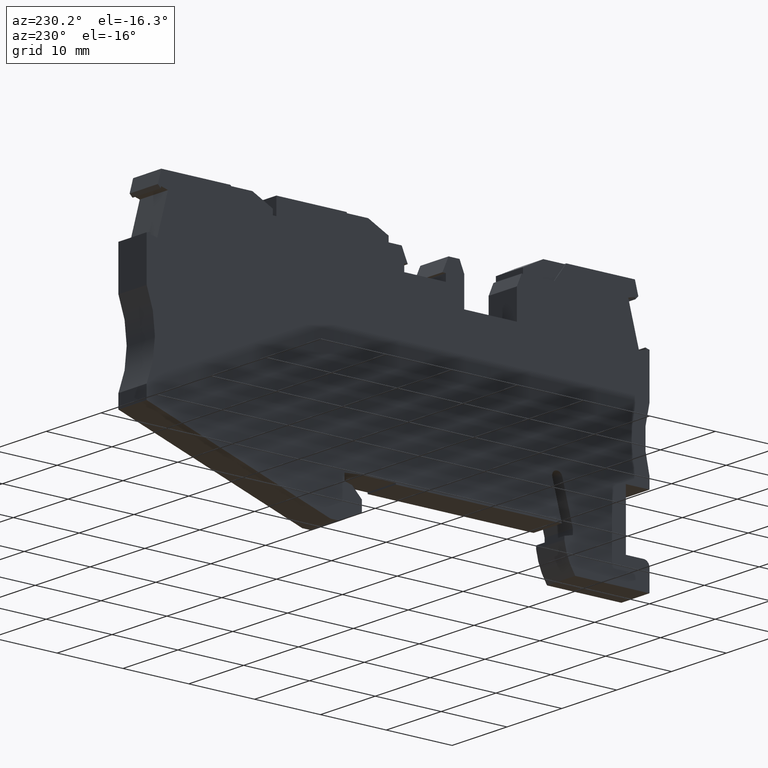
[diagram: clean part render]
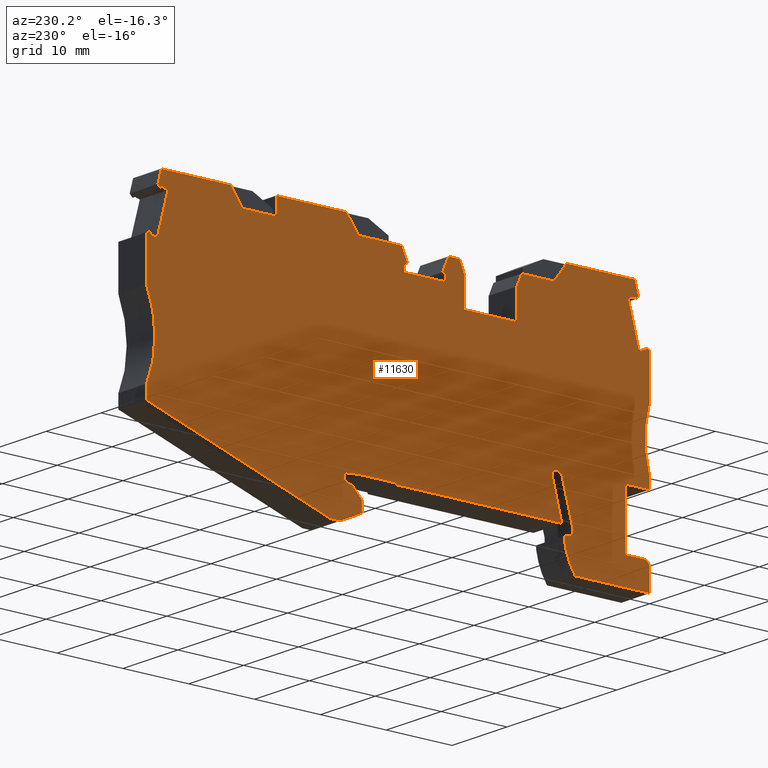
[diagram: same view with one face highlighted and labeled with its STEP entity id]
A machine part, auxiliary view. The second image highlights one B-rep face of the part: STEP entity #11630.
In plain terms, the highlighted planar face has unit normal (-1, 0, 0).
Its self-contained STEP definition (entity closure, byte-faithful):
#5900=CARTESIAN_POINT('',(51.2188489241426,33.0164906422133,
-5.15000000005551));
#5910=DIRECTION('',(4.96842071130554E-14,5.83845220303011E-13,-1.));
#5920=DIRECTION('',(-0.992546151641485,-0.121869343403826,
-1.20466702215212E-13));
#5930=AXIS2_PLACEMENT_3D('',#5900,#5910,#5920);
#5940=PLANE('',#5930);
#5950=CARTESIAN_POINT('',(2.08721928629529E-13,-25.676500943028,
-5.15000000009233));
#5960=DIRECTION('',(0.904601039469269,0.426259263114737,
2.93820523467048E-13));
#5970=VECTOR('',#5960,1.);
#5980=LINE('',#5950,#5970);
#5990=CARTESIAN_POINT('',(55.8575904551393,0.644290552791665,
-5.15000000007418));
#6000=VERTEX_POINT('',#5990);
#6010=CARTESIAN_POINT('',(82.4574372953319,13.1784692883342,
-5.15000000006554));
#6020=VERTEX_POINT('',#6010);
#6030=EDGE_CURVE('',#6000,#6020,#5980,.T.);
#6040=ORIENTED_EDGE('',*,*,#6030,.F.);
#6050=CARTESIAN_POINT('',(84.0755498602719,4.09450251481758E-12,
-5.15000000007316));
#6060=DIRECTION('',(-0.121869343405147,0.992546151641322,
5.73430192218893E-13));
#6070=VECTOR('',#6060,1.);
#6080=LINE('',#6050,#6070);
#6090=CARTESIAN_POINT('',(82.2135822231593,15.1645094743265,
-5.1500000000644));
#6100=VERTEX_POINT('',#6090);
#6110=EDGE_CURVE('',#6020,#6100,#6080,.T.);
#6120=ORIENTED_EDGE('',*,*,#6110,.F.);
#6130=CARTESIAN_POINT('',(95.1276197746289,22.7952128573204,
-5.1500000000593));
#6140=DIRECTION('',(0.,0.,1.));
#6150=DIRECTION('',(0.992546151641322,0.121869343405147,0.));
#6160=AXIS2_PLACEMENT_3D('',#6130,#6140,#6150);
#6170=CIRCLE('',#6160,15.);
#6180=CARTESIAN_POINT('',(80.7511501013423,27.0750632908134,
-5.15000000005752));
#6190=VERTEX_POINT('',#6180);
#6200=EDGE_CURVE('',#6190,#6100,#6170,.T.);
#6210=ORIENTED_EDGE('',*,*,#6200,.T.);
#6220=CARTESIAN_POINT('',(83.8121891997342,2.1449004439346,
-5.15000000007088));
#6230=DIRECTION('',(-0.121869343405148,0.992546151641323,
-8.59348256359817E-17));
#6240=VECTOR('',#6230,1.);
#6250=LINE('',#6220,#6240);
#6260=CARTESIAN_POINT('',(79.9711959708173,33.4272799277381,
-5.15000000005385));
#6270=VERTEX_POINT('',#6260);
#6280=EDGE_CURVE('',#6190,#6270,#6250,.T.);
#6290=ORIENTED_EDGE('',*,*,#6280,.F.);
#6300=CARTESIAN_POINT('',(84.393590998747,32.805752839162,
-5.1500000001038));
#6310=DIRECTION('',(0.990268068742582,-0.139173100952866,
2.38914485789058E-14));
#6320=VECTOR('',#6310,1.);
#6330=LINE('',#6300,#6320);
#6340=CARTESIAN_POINT('',(79.3161911343751,33.519334854181,
-5.15000000005383));
#6350=VERTEX_POINT('',#6340);
#6360=EDGE_CURVE('',#6350,#6270,#6330,.T.);
#6370=ORIENTED_EDGE('',*,*,#6360,.T.);
#6380=CARTESIAN_POINT('',(88.5328933703196,10.7071963181914,
-5.15000000007088));
#6390=DIRECTION('',(0.374606593416609,-0.927183854566507,
1.02199061616735E-16));
#6400=VECTOR('',#6390,1.);
#6410=LINE('',#6380,#6400);
#6420=CARTESIAN_POINT('',(79.4181993646889,33.2668556243914,
-5.15000000005397));
#6430=VERTEX_POINT('',#6420);
#6440=EDGE_CURVE('',#6350,#6430,#6410,.T.);
#6450=ORIENTED_EDGE('',*,*,#6440,.F.);
#6460=CARTESIAN_POINT('',(83.833817627005,35.0508812056451,
-5.15000000007089));
#6470=DIRECTION('',(0.927183854566691,0.374606593416152,
6.21468438094032E-17));
#6480=VECTOR('',#6470,1.);
#6490=LINE('',#6460,#6480);
#6500=CARTESIAN_POINT('',(78.4261126403034,32.8660265694365,
-5.15000000005425));
#6510=VERTEX_POINT('',#6500);
#6520=EDGE_CURVE('',#6510,#6430,#6490,.T.);
#6530=ORIENTED_EDGE('',*,*,#6520,.T.);
#6540=CARTESIAN_POINT('',(87.4844737959653,10.4457959595759,
-5.15000000010379));
#6550=DIRECTION('',(-0.374606593416128,0.927183854566701,
-6.4721036654035E-15));
#6560=VECTOR('',#6550,1.);
#6570=LINE('',#6540,#6560);
#6580=CARTESIAN_POINT('',(76.0567259369463,38.7304644495711,
-5.15000000005094));
#6590=VERTEX_POINT('',#6580);
#6600=EDGE_CURVE('',#6510,#6590,#6570,.T.);
#6610=ORIENTED_EDGE('',*,*,#6600,.F.);
#6620=CARTESIAN_POINT('',(82.2886239183839,41.2483146708005,
-5.15000000007089));
#6630=DIRECTION('',(-0.927183854566821,-0.37460659341583,
-6.21468438096052E-17));
#6640=VECTOR('',#6630,1.);
#6650=LINE('',#6620,#6640);
#6660=CARTESIAN_POINT('',(77.0488126613329,39.1312935045261,
-5.15000000005066));
#6670=VERTEX_POINT('',#6660);
#6680=EDGE_CURVE('',#6670,#6590,#6650,.T.);
#6690=ORIENTED_EDGE('',*,*,#6680,.T.);
#6700=CARTESIAN_POINT('',(88.5328933702838,10.7071963181825,
-5.15000000007088));
#6710=DIRECTION('',(-0.374606593415373,0.927183854567006,
-1.02199061616634E-16));
#6720=VECTOR('',#6710,1.);
#6730=LINE('',#6700,#6720);
#6740=CARTESIAN_POINT('',(77.1508208916473,38.8788142747344,
-5.1500000000508));
#6750=VERTEX_POINT('',#6740);
#6760=EDGE_CURVE('',#6750,#6670,#6730,.T.);
#6770=ORIENTED_EDGE('',*,*,#6760,.T.);
#6780=CARTESIAN_POINT('',(81.4935363772046,44.4372366214538,
-5.15000000010383));
#6790=DIRECTION('',(0.615661475326689,0.788010753605917,
1.74054671256952E-14));
#6800=VECTOR('',#6790,1.);
#6810=LINE('',#6780,#6800);
#6820=CARTESIAN_POINT('',(77.5276003492673,39.361069988696,
-5.1500000000505));
#6830=VERTEX_POINT('',#6820);
#6840=EDGE_CURVE('',#6750,#6830,#6810,.T.);
#6850=ORIENTED_EDGE('',*,*,#6840,.F.);
#6860=CARTESIAN_POINT('',(89.0522040005969,10.8366750004937,
-5.15000000010375));
#6870=DIRECTION('',(-0.374606593416333,0.927183854566618,
-6.45822587759573E-15));
#6880=VECTOR('',#6870,1.);
#6890=LINE('',#6860,#6880);
#6900=CARTESIAN_POINT('',(76.7664159758304,41.2450674244131,
-5.15000000004944));
#6910=VERTEX_POINT('',#6900);
#6920=EDGE_CURVE('',#6830,#6910,#6890,.T.);
#6930=ORIENTED_EDGE('',*,*,#6920,.F.);
#6940=CARTESIAN_POINT('',(82.1253763220989,41.903065017426,
-5.15000000007089));
#6950=DIRECTION('',(0.992546151641315,0.121869343405205,
8.64803049957699E-17));
#6960=VECTOR('',#6950,1.);
#6970=LINE('',#6940,#6960);
#6980=CARTESIAN_POINT('',(66.3229877196639,39.9627756716581,
-5.15000000005071));
#6990=VERTEX_POINT('',#6980);
#7000=EDGE_CURVE('',#6990,#6910,#6970,.T.);
#7010=ORIENTED_EDGE('',*,*,#7000,.T.);
#7020=CARTESIAN_POINT('',(43.6250560928384,-0.477025041580978,
-5.15000000007089));
#7030=DIRECTION('',(0.489450898605546,0.872030858315361,
-1.53886159530772E-17));
#7040=VECTOR('',#7030,1.);
#7050=LINE('',#7020,#7040);
#7060=CARTESIAN_POINT('',(64.804617126186,37.2575686414052,
-5.15000000005236));
#7070=VERTEX_POINT('',#7060);
#7080=EDGE_CURVE('',#7070,#6990,#7050,.T.);
#7090=ORIENTED_EDGE('',*,*,#7080,.T.);
#7100=CARTESIAN_POINT('',(-0.0992546151641323,29.288375248745,
-5.15000000006023));
#7110=DIRECTION('',(-0.992546151641322,-0.121869343405148,
-1.20466137065733E-13));
#7120=VECTOR('',#7110,1.);
#7130=LINE('',#7100,#7120);
#7140=CARTESIAN_POINT('',(59.729465324271,36.6344183558914,
-5.15000000005298));
#7150=VERTEX_POINT('',#7140);
#7160=EDGE_CURVE('',#7070,#7150,#7130,.T.);
#7170=ORIENTED_EDGE('',*,*,#7160,.F.);
#7180=CARTESIAN_POINT('',(64.2283544797256,-0.00609346717034231,
-5.15000000007413));
#7190=DIRECTION('',(-0.121869343405205,0.992546151641315,
5.73423253324989E-13));
#7200=VECTOR('',#7190,1.);
#7210=LINE('',#7180,#7200);
#7220=CARTESIAN_POINT('',(59.4247919657583,39.1157837349924,
-5.15000000005155));
#7230=VERTEX_POINT('',#7220);
#7240=EDGE_CURVE('',#7150,#7230,#7210,.T.);
#7250=ORIENTED_EDGE('',*,*,#7240,.F.);
#7260=CARTESIAN_POINT('',(-0.0992546151641323,31.8071498123863,
-5.15000000005876));
#7270=DIRECTION('',(0.992546151641315,0.121869343405205,
1.20466137065733E-13));
#7280=VECTOR('',#7270,1.);
#7290=LINE('',#7260,#7280);
#7300=CARTESIAN_POINT('',(48.8541754507767,37.8178752277268,
-5.15000000005283));
#7310=VERTEX_POINT('',#7300);
#7320=EDGE_CURVE('',#7310,#7230,#7290,.T.);
#7330=ORIENTED_EDGE('',*,*,#7320,.T.);
#7340=CARTESIAN_POINT('',(26.1562438239512,-2.62192548551224,
-5.15000000007101));
#7350=DIRECTION('',(0.489450898605546,0.872030858315361,
-1.53886159530772E-17));
#7360=VECTOR('',#7350,1.);
#7370=LINE('',#7340,#7360);
#7380=CARTESIAN_POINT('',(47.3358048572987,35.1126681974736,
-5.15000000005448));
#7390=VERTEX_POINT('',#7380);
#7400=EDGE_CURVE('',#7390,#7310,#7370,.T.);
#7410=ORIENTED_EDGE('',*,*,#7400,.T.);
#7420=CARTESIAN_POINT('',(2.74773580778554E-13,29.3005621830849,
-5.150000000071));
#7430=DIRECTION('',(-0.992546151641322,-0.121869343405148,
-9.82259016566094E-17));
#7440=VECTOR('',#7430,1.);
#7450=LINE('',#7420,#7440);
#7460=CARTESIAN_POINT('',(40.8310435482323,34.313983936362,
-5.15000000005527));
#7470=VERTEX_POINT('',#7460);
#7480=EDGE_CURVE('',#7390,#7470,#7450,.T.);
#7490=ORIENTED_EDGE('',*,*,#7480,.F.);
#7500=CARTESIAN_POINT('',(30.5211237682861,3.33943950742872E-12,
-5.150000000071));
#7510=DIRECTION('',(0.287750497361288,0.957705409438796,
-3.91549328700319E-17));
#7520=VECTOR('',#7510,1.);
#7530=LINE('',#7500,#7520);
#7540=CARTESIAN_POINT('',(40.1694208776457,32.1119387046814,
-5.15000000005659));
#7550=VERTEX_POINT('',#7540);
#7560=EDGE_CURVE('',#7550,#7470,#7530,.T.);
#7570=ORIENTED_EDGE('',*,*,#7560,.T.);
#7580=CARTESIAN_POINT('',(2.74979605660059E-13,27.1797540004946,
-5.150000000071));
#7590=DIRECTION('',(-0.992546151641319,-0.121869343405174,
-9.82259016566094E-17));
#7600=VECTOR('',#7590,1.);
#7610=LINE('',#7580,#7600);
#7620=CARTESIAN_POINT('',(40.6933844696102,32.1762733442498,
-5.15000000005653));
#7630=VERTEX_POINT('',#7620);
#7640=EDGE_CURVE('',#7630,#7550,#7610,.T.);
#7650=ORIENTED_EDGE('',*,*,#7640,.T.);
#7660=CARTESIAN_POINT('',(44.6441340636762,3.34081148040932E-12,
-5.150000000071));
#7670=DIRECTION('',(-0.121869343405174,0.99254615164132,
-8.59348256359943E-17));
#7680=VECTOR('',#7670,1.);
#7690=LINE('',#7660,#7680);
#7700=CARTESIAN_POINT('',(40.8237846670537,31.1142489619936,
-5.15000000005714));
#7710=VERTEX_POINT('',#7700);
#7720=EDGE_CURVE('',#7710,#7630,#7690,.T.);
#7730=ORIENTED_EDGE('',*,*,#7720,.T.);
#7740=CARTESIAN_POINT('',(2.75084330896739E-13,26.1017184872561,
-5.150000000071));
#7750=DIRECTION('',(0.992546151641326,0.121869343405116,
9.82259016566094E-17));
#7760=VECTOR('',#7750,1.);
#7770=LINE('',#7740,#7760);
#7780=CARTESIAN_POINT('',(34.5459302579223,30.3434253649563,
-5.15000000005791));
#7790=VERTEX_POINT('',#7780);
#7800=EDGE_CURVE('',#7790,#7710,#7770,.T.);
#7810=ORIENTED_EDGE('',*,*,#7800,.T.);
#7820=CARTESIAN_POINT('',(38.2716344176489,3.34019242702407E-12,
-5.150000000071));
#7830=DIRECTION('',(0.121869343405174,-0.99254615164132,
8.59348256359943E-17));
#7840=VECTOR('',#7830,1.);
#7850=LINE('',#7820,#7840);
#7860=CARTESIAN_POINT('',(34.4155300604788,31.4054497472121,
-5.15000000005729));
#7870=VERTEX_POINT('',#7860);
#7880=EDGE_CURVE('',#7870,#7790,#7850,.T.);
#7890=ORIENTED_EDGE('',*,*,#7880,.T.);
#7900=CARTESIAN_POINT('',(2.74979605660059E-13,27.1797540004946,
-5.150000000071));
#7910=DIRECTION('',(-0.992546151641319,-0.121869343405174,
-9.82259016566094E-17));
#7920=VECTOR('',#7910,1.);
#7930=LINE('',#7900,#7920);
#7940=CARTESIAN_POINT('',(34.9394936524419,31.4697843867804,
-5.15000000005723));
#7950=VERTEX_POINT('',#7940);
#7960=EDGE_CURVE('',#7950,#7870,#7930,.T.);
#7970=ORIENTED_EDGE('',*,*,#7960,.T.);
#7980=CARTESIAN_POINT('',(53.6422195780399,3.34168559505944E-12,
-5.150000000071));
#7990=DIRECTION('',(0.510892985900243,-0.859644320028892,
1.18191535969853E-16));
#8000=VECTOR('',#7990,1.);
#8010=LINE('',#7980,#8000);
#8020=CARTESIAN_POINT('',(33.7648010461221,33.4463584535068,
-5.15000000005613));
#8030=VERTEX_POINT('',#8020);
#8040=EDGE_CURVE('',#8030,#7950,#8010,.T.);
#8050=ORIENTED_EDGE('',*,*,#8040,.T.);
#8060=CARTESIAN_POINT('',(2.67668153420955E-13,29.3005621830797,
-5.150000000071));
#8070=DIRECTION('',(-0.992546151641304,-0.121869343405294,
-9.82259016567104E-17));
#8080=VECTOR('',#8070,1.);
#8090=LINE('',#8060,#8080);
#8100=CARTESIAN_POINT('',(32.1054168262378,33.2426116906988,
-5.15000000005633));
#8110=VERTEX_POINT('',#8100);
#8120=EDGE_CURVE('',#8030,#8110,#8090,.T.);
#8130=ORIENTED_EDGE('',*,*,#8120,.F.);
#8140=CARTESIAN_POINT('',(22.6289845756455,3.33867282939726E-12,
-5.150000000071));
#8150=DIRECTION('',(-0.274147194873143,-0.961687743263471,
4.09156335346837E-17));
#8160=VECTOR('',#8150,1.);
#8170=LINE('',#8140,#8160);
#8180=CARTESIAN_POINT('',(31.5994505786984,31.4677201438829,
-5.15000000005739));
#8190=VERTEX_POINT('',#8180);
#8200=EDGE_CURVE('',#8110,#8190,#8170,.T.);
#8210=ORIENTED_EDGE('',*,*,#8200,.F.);
#8220=CARTESIAN_POINT('',(35.4632007791811,3.33991960310133E-12,
-5.150000000071));
#8230=DIRECTION('',(0.121869343405179,-0.992546151641319,
8.5934825636007E-17));
#8240=VECTOR('',#8230,1.);
#8250=LINE('',#8220,#8240);
#8260=CARTESIAN_POINT('',(32.1234887553405,27.1997716918271,
-5.15000000005986));
#8270=VERTEX_POINT('',#8260);
#8280=EDGE_CURVE('',#8190,#8270,#8250,.T.);
#8290=ORIENTED_EDGE('',*,*,#8280,.F.);
#8300=CARTESIAN_POINT('',(2.75360825096381E-13,23.2555032303324,
-5.150000000071));
#8310=DIRECTION('',(-0.992546151641319,-0.121869343405174,
-9.82259016566094E-17));
#8320=VECTOR('',#8310,1.);
#8330=LINE('',#8300,#8320);
#8340=CARTESIAN_POINT('',(24.1831195422101,26.2248169445857,
-5.15000000006082));
#8350=VERTEX_POINT('',#8340);
#8360=EDGE_CURVE('',#8270,#8350,#8330,.T.);
#8370=ORIENTED_EDGE('',*,*,#8360,.F.);
#8380=CARTESIAN_POINT('',(27.4031221755097,3.34624203803489E-12,
-5.15000000010451));
#8390=DIRECTION('',(0.121869343405181,-0.992546151641318,
8.72785298206686E-17));
#8400=VECTOR('',#8390,1.);
#8410=LINE('',#8380,#8400);
#8420=CARTESIAN_POINT('',(23.659081365568,30.4927653966418,
-5.15000000005836));
#8430=VERTEX_POINT('',#8420);
#8440=EDGE_CURVE('',#8430,#8350,#8410,.T.);
#8450=ORIENTED_EDGE('',*,*,#8440,.T.);
#8460=CARTESIAN_POINT('',(41.2011308712367,3.34758243889284E-12,
-5.150000000071));
#8470=DIRECTION('',(-0.498657173381274,0.866799298243485,
-1.18270367560133E-16));
#8480=VECTOR('',#8470,1.);
#8490=LINE('',#8460,#8480);
#8500=CARTESIAN_POINT('',(22.7387593504508,32.0925307654068,
-5.15000000005747));
#8510=VERTEX_POINT('',#8500);
#8520=EDGE_CURVE('',#8430,#8510,#8490,.T.);
#8530=ORIENTED_EDGE('',*,*,#8520,.F.);
#8540=CARTESIAN_POINT('',(2.88984435493758E-13,29.3005621830849,
-5.150000000071));
#8550=DIRECTION('',(0.992546151641322,0.121869343405148,
9.72949153238301E-17));
#8560=VECTOR('',#8550,1.);
#8570=LINE('',#8540,#8560);
#8580=CARTESIAN_POINT('',(17.8308512977752,31.4899154302072,
-5.15000000005806));
#8590=VERTEX_POINT('',#8580);
#8600=EDGE_CURVE('',#8590,#8510,#8570,.T.);
#8610=ORIENTED_EDGE('',*,*,#8600,.T.);
#8620=CARTESIAN_POINT('',(47.5101132863064,3.34819532192752E-12,
-5.150000000071));
#8630=DIRECTION('',(-0.685875473404007,0.727718925810529,
-1.27942206345717E-16));
#8640=VECTOR('',#8630,1.);
#8650=LINE('',#8620,#8640);
#8660=CARTESIAN_POINT('',(15.7031339872712,33.747439158157,
-5.15000000005685));
#8670=VERTEX_POINT('',#8660);
#8680=EDGE_CURVE('',#8590,#8670,#8650,.T.);
#8690=ORIENTED_EDGE('',*,*,#8680,.F.);
#8700=CARTESIAN_POINT('',(2.8873975036133E-13,31.8193367467305,
-5.15000000007101));
#8710=DIRECTION('',(-0.992546151641322,-0.121869343405148,
-9.72949153238301E-17));
#8720=VECTOR('',#8710,1.);
#8730=LINE('',#8700,#8720);
#8740=CARTESIAN_POINT('',(5.35896034626881,32.4773343397431,
-5.15000000005811));
#8750=VERTEX_POINT('',#8740);
#8760=EDGE_CURVE('',#8670,#8750,#8730,.T.);
#8770=ORIENTED_EDGE('',*,*,#8760,.F.);
#8780=CARTESIAN_POINT('',(0.794568669240055,3.34365716301886E-12,
-5.15000000010387));
#8790=DIRECTION('',(0.139173100960457,0.990268068741516,
-6.41514962493588E-15));
#8800=VECTOR('',#8790,1.);
#8810=LINE('',#8780,#8800);
#8820=CARTESIAN_POINT('',(5.07616663276865,30.4651525130292,
-5.1500000000593));
#8830=VERTEX_POINT('',#8820);
#8840=EDGE_CURVE('',#8830,#8750,#8810,.T.);
#8850=ORIENTED_EDGE('',*,*,#8840,.T.);
#8860=CARTESIAN_POINT('',(2.8848603300097E-13,34.431088540953,
-5.15000000010395));
#8870=DIRECTION('',(-0.788010753607563,0.615661475324582,
1.72722327763108E-14));
#8880=VECTOR('',#8870,1.);
#8890=LINE('',#8860,#8880);
#8900=CARTESIAN_POINT('',(5.5584223467313,30.0883730554105,
-5.15000000005949));
#8910=VERTEX_POINT('',#8900);
#8920=EDGE_CURVE('',#8910,#8830,#8890,.T.);
#8930=ORIENTED_EDGE('',*,*,#8920,.T.);
#8940=CARTESIAN_POINT('',(1.32977728270709,3.34370915559986E-12,
-5.150000000071));
#8950=DIRECTION('',(0.139173100959432,0.99026806874166,
-5.91228089569874E-17));
#8960=VECTOR('',#8950,1.);
#8970=LINE('',#8940,#8960);
#8980=CARTESIAN_POINT('',(5.59632024277954,30.3580305974954,
-5.15000000005933));
#8990=VERTEX_POINT('',#8980);
#9000=EDGE_CURVE('',#8910,#8990,#8970,.T.);
#9010=ORIENTED_EDGE('',*,*,#9000,.F.);
#9020=CARTESIAN_POINT('',(2.88805302958234E-13,31.1445421156766,
-5.15000000007101));
#9030=DIRECTION('',(0.990268068741591,-0.13917310095992,
1.1656901722391E-16));
#9040=VECTOR('',#9030,1.);
#9050=LINE('',#9020,#9040);
#9060=CARTESIAN_POINT('',(6.65590707633322,30.2091153794682,
-5.15000000005937));
#9070=VERTEX_POINT('',#9060);
#9080=EDGE_CURVE('',#8990,#9070,#9050,.T.);
#9090=ORIENTED_EDGE('',*,*,#9080,.F.);
#9100=CARTESIAN_POINT('',(2.41029278527699,3.34381412175393E-12,
-5.15000000010391));
#9110=DIRECTION('',(0.139173100960239,0.990268068741546,
-6.42902741274372E-15));
#9120=VECTOR('',#9110,1.);
#9130=LINE('',#9100,#9120);
#9140=CARTESIAN_POINT('',(5.77563721275968,23.9456698446777,
-5.15000000006307));
#9150=VERTEX_POINT('',#9140);
#9160=EDGE_CURVE('',#9150,#9070,#9130,.T.);
#9170=ORIENTED_EDGE('',*,*,#9160,.T.);
#9180=CARTESIAN_POINT('',(2.89425780457587E-13,24.7573827194983,
-5.150000000071));
#9190=DIRECTION('',(-0.990268068741542,0.139173100960264,
-1.1656901722391E-16));
#9200=VECTOR('',#9190,1.);
#9210=LINE('',#9180,#9200);
#9220=CARTESIAN_POINT('',(4.71605037920706,24.0945850627051,
-5.15000000006303));
#9230=VERTEX_POINT('',#9220);
#9240=EDGE_CURVE('',#9150,#9230,#9210,.T.);
#9250=ORIENTED_EDGE('',*,*,#9240,.F.);
#9260=CARTESIAN_POINT('',(1.32977728267015,3.34370915559986E-12,
-5.150000000071));
#9270=DIRECTION('',(-0.139173100960752,-0.990268068741474,
5.91228089567854E-17));
#9280=VECTOR('',#9270,1.);
#9290=LINE('',#9260,#9280);
#9300=CARTESIAN_POINT('',(4.75394827525534,24.3642426047876,
-5.15000000006287));
#9310=VERTEX_POINT('',#9300);
#9320=EDGE_CURVE('',#9310,#9230,#9290,.T.);
#9330=ORIENTED_EDGE('',*,*,#9320,.T.);
#9340=CARTESIAN_POINT('',(2.8965055925391E-13,22.4435228253607,
-5.15000000010392));
#9350=DIRECTION('',(-0.927183854569489,-0.374606593409226,
2.37151379768616E-14));
#9360=VECTOR('',#9350,1.);
#9370=LINE('',#9340,#9360);
#9380=CARTESIAN_POINT('',(4.14066998406957,24.1164620914184,
-5.15000000006305));
#9390=VERTEX_POINT('',#9380);
#9400=EDGE_CURVE('',#9310,#9390,#9370,.T.);
#9410=ORIENTED_EDGE('',*,*,#9400,.F.);
#9420=CARTESIAN_POINT('',(7.10179919249551,3.34426987586686E-12,
-5.15000000010402));
#9430=DIRECTION('',(-0.121869343405148,0.992546151641323,
-8.7278529820656E-17));
#9440=VECTOR('',#9430,1.);
#9450=LINE('',#9420,#9440);
#9460=CARTESIAN_POINT('',(4.92062411422074,17.7642454575376,
-5.15000000007102));
#9470=VERTEX_POINT('',#9460);
#9480=EDGE_CURVE('',#9470,#9390,#9450,.T.);
#9490=ORIENTED_EDGE('',*,*,#9480,.T.);
#9500=CARTESIAN_POINT('',(-8.73339408944809,11.5539486132764,
-5.150000000071));
#9510=DIRECTION('',(-1.12577348889874E-16,8.16781307540979E-17,1.));
#9520=DIRECTION('',(0.992546151641322,0.121869343405148,
9.82259016566094E-17));
#9530=AXIS2_PLACEMENT_3D('',#9500,#9510,#9520);
#9540=CIRCLE('',#9530,15.);
#9550=CARTESIAN_POINT('',(6.01744820486748,8.83133009276248,
-5.15000000007102));
#9560=VERTEX_POINT('',#9550);
#9570=EDGE_CURVE('',#9560,#9470,#9540,.T.);
#9580=ORIENTED_EDGE('',*,*,#9570,.T.);
#9590=CARTESIAN_POINT('',(7.10179919249552,3.34071716218806E-12,
-5.150000000071));
#9600=DIRECTION('',(0.121869343405148,-0.992546151641323,
8.59348256359817E-17));
#9610=VECTOR('',#9600,1.);
#9620=LINE('',#9590,#9610);
#9630=CARTESIAN_POINT('',(6.21243915431487,7.24325625014324,
-5.1500000000728));
#9640=VERTEX_POINT('',#9630);
#9650=EDGE_CURVE('',#9560,#9640,#9620,.T.);
#9660=ORIENTED_EDGE('',*,*,#9650,.F.);
#9670=CARTESIAN_POINT('',(2.84095855435949E-13,6.4804646364447,
-5.150000000071));
#9680=DIRECTION('',(0.992546151641322,0.121869343405148,
9.82259016566094E-17));
#9690=VECTOR('',#9680,1.);
#9700=LINE('',#9670,#9690);
#9710=CARTESIAN_POINT('',(9.78560530024196,7.68198588640402,
-5.15000000007236));
#9720=VERTEX_POINT('',#9710);
#9730=EDGE_CURVE('',#9640,#9720,#9700,.T.);
#9740=ORIENTED_EDGE('',*,*,#9730,.F.);
#9750=CARTESIAN_POINT('',(10.728834564166,3.34106950877888E-12,
-5.150000000071));
#9760=DIRECTION('',(0.121869343405148,-0.992546151641323,
8.59348256359817E-17));
#9770=VECTOR('',#9760,1.);
#9780=LINE('',#9750,#9770);
#9790=CARTESIAN_POINT('',(10.8336816535264,-0.853911017712331,
-5.1500000000773));
#9800=VERTEX_POINT('',#9790);
#9810=EDGE_CURVE('',#9720,#9800,#9780,.T.);
#9820=ORIENTED_EDGE('',*,*,#9810,.F.);
#9830=CARTESIAN_POINT('',(2.920429996491E-13,-2.18411986250238,
-5.150000000071));
#9840=DIRECTION('',(-0.992546151641322,-0.121869343405148,
-9.82259016566094E-17));
#9850=VECTOR('',#9840,1.);
#9860=LINE('',#9830,#9850);
#9870=CARTESIAN_POINT('',(8.15380704409538,-1.18295824490616,
-5.15000000007814));
#9880=VERTEX_POINT('',#9870);
#9890=EDGE_CURVE('',#9800,#9880,#9860,.T.);
#9900=ORIENTED_EDGE('',*,*,#9890,.F.);
#9910=CARTESIAN_POINT('',(8.26348945315999,-2.07624978138317,
-5.150000000071));
#9920=DIRECTION('',(-1.12577348889874E-16,8.16781307540979E-17,1.));
#9930=DIRECTION('',(0.992546151641322,0.121869343405148,
9.82259016566094E-17));
#9940=AXIS2_PLACEMENT_3D('',#9910,#9920,#9930);
#9950=CIRCLE('',#9940,0.899999999999821);
#9960=CARTESIAN_POINT('',(7.37019791668297,-2.18593219044782,
-5.15000000007825));
#9970=VERTEX_POINT('',#9960);
#9980=EDGE_CURVE('',#9880,#9970,#9950,.T.);
#9990=ORIENTED_EDGE('',*,*,#9980,.F.);
#10000=CARTESIAN_POINT('',(7.10179919251571,3.34071716218806E-12,
-5.150000000071));
#10010=DIRECTION('',(0.121869343404785,-0.992546151641367,
8.59348256359561E-17));
#10020=VECTOR('',#10010,1.);
#10030=LINE('',#10000,#10020);
#10040=CARTESIAN_POINT('',(7.74799288123782,-5.26282526053619,
-5.15000000008002));
#10050=VERTEX_POINT('',#10040);
#10060=EDGE_CURVE('',#9970,#10050,#10030,.T.);
#10070=ORIENTED_EDGE('',*,*,#10060,.F.);
#10080=CARTESIAN_POINT('',(2.92434495860984E-13,-6.21415916433807,
-5.150000000071));
#10090=DIRECTION('',(0.992546151641318,0.121869343405185,
9.82259016565085E-17));
#10100=VECTOR('',#10090,1.);
#10110=LINE('',#10080,#10100);
#10120=CARTESIAN_POINT('',(18.9548874062869,-3.88679163719245,
-5.15000000007866));
#10130=VERTEX_POINT('',#10120);
#10140=EDGE_CURVE('',#10050,#10130,#10110,.T.);
#10150=ORIENTED_EDGE('',*,*,#10140,.F.);
#10160=CARTESIAN_POINT('',(10.6053593749796,0.64480649750527,
-5.150000000071));
#10170=DIRECTION('',(-1.12577348889874E-16,8.16781307540979E-17,1.));
#10180=DIRECTION('',(0.992546151641322,0.121869343405148,
9.82259016566094E-17));
#10190=AXIS2_PLACEMENT_3D('',#10160,#10170,#10180);
#10200=CIRCLE('',#10190,9.49999999999899);
#10210=CARTESIAN_POINT('',(20.1018012370325,0.384821958289101,
-5.15000000007611));
#10220=VERTEX_POINT('',#10210);
#10230=EDGE_CURVE('',#10130,#10220,#10200,.T.);
#10240=ORIENTED_EDGE('',*,*,#10230,.F.);
#10250=CARTESIAN_POINT('',(20.1490514322066,3.34198463117447E-12,
-5.150000000071));
#10260=DIRECTION('',(-0.121869343405616,0.992546151641265,
-8.59348256360326E-17));
#10270=VECTOR('',#10260,1.);
#10280=LINE('',#10250,#10270);
#10290=CARTESIAN_POINT('',(20.0467569920998,0.833121357885666,
-5.15000000007586));
#10300=VERTEX_POINT('',#10290);
#10310=EDGE_CURVE('',#10220,#10300,#10280,.T.);
#10320=ORIENTED_EDGE('',*,*,#10310,.F.);
#10330=CARTESIAN_POINT('',(2.914761974293E-13,3.65050931863374,
-5.150000000071));
#10340=DIRECTION('',(-0.990268068741554,0.139173100960182,
-1.17120504732763E-16));
#10350=VECTOR('',#10340,1.);
#10360=LINE('',#10330,#10350);
#10370=CARTESIAN_POINT('',(18.7139957651749,1.02042873317683,
-5.15000000007581));
#10380=VERTEX_POINT('',#10370);
#10390=EDGE_CURVE('',#10300,#10380,#10360,.T.);
#10400=ORIENTED_EDGE('',*,*,#10390,.F.);
#10410=CARTESIAN_POINT('',(18.8392886591104,3.34541010858436E-12,
-5.150000000071));
#10420=DIRECTION('',(-0.121869343405148,0.992546151641323,
-8.59348256359817E-17));
#10430=VECTOR('',#10420,1.);
#10440=LINE('',#10410,#10430);
#10450=CARTESIAN_POINT('',(18.6165002904491,1.81446565450375,
-5.15000000007535));
#10460=VERTEX_POINT('',#10450);
#10470=EDGE_CURVE('',#10380,#10460,#10440,.T.);
#10480=ORIENTED_EDGE('',*,*,#10470,.F.);
#10490=CARTESIAN_POINT('',(18.361493772826,3.34181097975323E-12,
-5.150000000071));
#10500=DIRECTION('',(0.139173100960507,0.990268068741509,
-5.75839333883403E-17));
#10510=VECTOR('',#10500,1.);
#10520=LINE('',#10490,#10510);
#10530=CARTESIAN_POINT('',(19.4820124054502,7.97290435191334,
-5.15000000007174));
#10540=VERTEX_POINT('',#10530);
#10550=EDGE_CURVE('',#10460,#10540,#10520,.T.);
#10560=ORIENTED_EDGE('',*,*,#10550,.F.);
#10570=CARTESIAN_POINT('',(20.2742268604433,7.86156587114471,
-5.150000000071));
#10580=DIRECTION('',(-1.12577348889874E-16,8.16781307540979E-17,1.));
#10590=DIRECTION('',(0.992546151641322,0.121869343405148,
9.82259016566094E-17));
#10600=AXIS2_PLACEMENT_3D('',#10570,#10580,#10590);
#10610=CIRCLE('',#10600,0.799999999999973);
#10620=CARTESIAN_POINT('',(20.4087883003757,8.65016793738805,
-5.15000000007168));
#10630=VERTEX_POINT('',#10620);
#10640=EDGE_CURVE('',#10630,#10540,#10610,.T.);
#10650=ORIENTED_EDGE('',*,*,#10640,.T.);
#10660=CARTESIAN_POINT('',(20.3331828715018,7.95426290139174,
-5.150000000071));
#10670=DIRECTION('',(-1.12577348889874E-16,8.16781307540979E-17,1.));
#10680=DIRECTION('',(0.992546151641322,0.121869343405148,
9.82259016566094E-17));
#10690=AXIS2_PLACEMENT_3D('',#10660,#10670,#10680);
#10700=CIRCLE('',#10690,0.700000000000178);
#10710=CARTESIAN_POINT('',(21.0263705196211,7.85684173072004,
-5.15000000007168));
#10720=VERTEX_POINT('',#10710);
#10730=EDGE_CURVE('',#10720,#10630,#10700,.T.);
#10740=ORIENTED_EDGE('',*,*,#10730,.T.);
#10750=CARTESIAN_POINT('',(19.9221634246611,3.3419625902491E-12,
-5.150000000071));
#10760=DIRECTION('',(-0.139173100960119,-0.990268068741564,
5.75839333883656E-17));
#10770=VECTOR('',#10760,1.);
#10780=LINE('',#10750,#10770);
#10790=CARTESIAN_POINT('',(20.2477989119897,2.31701688707379,
-5.15000000007498));
#10800=VERTEX_POINT('',#10790);
#10810=EDGE_CURVE('',#10720,#10800,#10780,.T.);
#10820=ORIENTED_EDGE('',*,*,#10810,.F.);
#10830=CARTESIAN_POINT('',(2.84741824185557E-13,-0.169100211585139,
-5.150000000071));
#10840=DIRECTION('',(-0.992546151641322,-0.121869343405148,
-9.82259016566094E-17));
#10850=VECTOR('',#10840,1.);
#10860=LINE('',#10830,#10850);
#10870=CARTESIAN_POINT('',(45.2794309665808,5.39051483757984,
-5.15000000007194));
#10880=VERTEX_POINT('',#10870);
#10890=EDGE_CURVE('',#10880,#10800,#10860,.T.);
#10900=ORIENTED_EDGE('',*,*,#10890,.T.);
#10910=CARTESIAN_POINT('',(45.2794309665808,5.39051483757984,
-5.150000000071));
#10920=DIRECTION('',(-0.121869343405148,0.992546151641323,
-8.59348256359817E-17));
#10930=VECTOR('',#10920,1.);
#10940=LINE('',#10910,#10930);
#10950=CARTESIAN_POINT('',(45.2550570978997,5.58902406790885,
-5.15000000007183));
#10960=VERTEX_POINT('',#10950);
#10970=EDGE_CURVE('',#10880,#10960,#10940,.T.);
#10980=ORIENTED_EDGE('',*,*,#10970,.F.);
#10990=CARTESIAN_POINT('',(2.77616822017362E-13,0.0324017535073904,
-5.150000000071));
#11000=DIRECTION('',(-0.992546151641322,-0.121869343405148,
-9.82259016566094E-17));
#11010=VECTOR('',#11000,1.);
#11020=LINE('',#10990,#11010);
#11030=CARTESIAN_POINT('',(50.727946195471,6.2610103526243,
-5.15000000007116));
#11040=VERTEX_POINT('',#11030);
#11050=EDGE_CURVE('',#11040,#10960,#11020,.T.);
#11060=ORIENTED_EDGE('',*,*,#11050,.T.);
#11070=CARTESIAN_POINT('',(2.77183834374787E-13,4.48955143674248,
-5.150000000071));
#11080=DIRECTION('',(-0.999390827019096,-0.034899496702501,
-1.05341836001729E-16));
#11090=VECTOR('',#11080,1.);
#11100=LINE('',#11070,#11090);
#11110=CARTESIAN_POINT('',(53.021290949383,6.34109571614077,
-5.150000000071));
#11120=VERTEX_POINT('',#11110);
#11130=EDGE_CURVE('',#11120,#11040,#11100,.T.);
#11140=ORIENTED_EDGE('',*,*,#11130,.T.);
#11150=CARTESIAN_POINT('',(53.7998796025322,3.341700910866E-12,
-5.150000000071));
#11160=DIRECTION('',(-0.121869343405148,0.992546151641323,
-8.59348256359817E-17));
#11170=VECTOR('',#11160,1.);
#11180=LINE('',#11150,#11170);
#11190=CARTESIAN_POINT('',(53.1431602927881,5.34854956449946,
-5.15000000007157));
#11200=VERTEX_POINT('',#11190);
#11210=EDGE_CURVE('',#11200,#11120,#11180,.T.);
#11220=ORIENTED_EDGE('',*,*,#11210,.T.);
#11230=CARTESIAN_POINT('',(2.79186199682117E-13,-16.122680917545,
-5.150000000071));
#11240=DIRECTION('',(0.927183854566808,0.374606593415861,
7.26373657084862E-17));
#11250=VECTOR('',#11240,1.);
#11260=LINE('',#11230,#11250);
#11270=CARTESIAN_POINT('',(52.0264251236403,4.89735926885133,
-5.15000000007189));
#11280=VERTEX_POINT('',#11270);
#11290=EDGE_CURVE('',#11280,#11200,#11260,.T.);
#11300=ORIENTED_EDGE('',*,*,#11290,.T.);
#11310=CARTESIAN_POINT('',(48.2001887190499,3.3411569316129E-12,
-5.150000000071));
#11320=DIRECTION('',(0.615661475325658,0.788010753606723,
8.69110320229915E-18));
#11330=VECTOR('',#11320,1.);
#11340=LINE('',#11310,#11330);
#11350=CARTESIAN_POINT('',(50.7320747686679,3.24066636287833,
-5.15000000007292));
#11360=VERTEX_POINT('',#11350);
#11370=EDGE_CURVE('',#11360,#11280,#11340,.T.);
#11380=ORIENTED_EDGE('',*,*,#11370,.T.);
#11390=CARTESIAN_POINT('',(51.1299785650663,3.33788883094673E-12,
-5.150000000071));
#11400=DIRECTION('',(-0.121869343405148,0.992546151641323,
-8.59348256359817E-17));
#11410=VECTOR('',#11400,1.);
#11420=LINE('',#11390,#11410);
#11430=CARTESIAN_POINT('',(50.9335437868799,1.59983288405619,
-5.15000000007387));
#11440=VERTEX_POINT('',#11430);
#11450=EDGE_CURVE('',#11440,#11360,#11420,.T.);
#11460=ORIENTED_EDGE('',*,*,#11450,.T.);
#11470=CARTESIAN_POINT('',(2.75856879840672E-13,18.1491444593546,
-5.150000000071));
#11480=DIRECTION('',(-0.951056516295154,0.309016994374948,
-1.25340526193273E-16));
#11490=VECTOR('',#11480,1.);
#11500=LINE('',#11470,#11490);
#11510=CARTESIAN_POINT('',(54.4182978727009,0.467567645045553,
-5.15000000007436));
#11520=VERTEX_POINT('',#11510);
#11530=EDGE_CURVE('',#11520,#11440,#11500,.T.);
#11540=ORIENTED_EDGE('',*,*,#11530,.T.);
#11550=CARTESIAN_POINT('',(2.08721928629529E-13,-6.21415916436026,
-5.15000000008096));
#11560=DIRECTION('',(-0.992546151641272,-0.121869343405557,
-1.20466137065733E-13));
#11570=VECTOR('',#11560,1.);
#11580=LINE('',#11550,#11570);
#11590=EDGE_CURVE('',#6000,#11520,#11580,.T.);
#11600=ORIENTED_EDGE('',*,*,#11590,.T.);
#11610=EDGE_LOOP('',(#11600,#11540,#11460,#11380,#11300,#11220,#11140,
#11060,#10980,#10900,#10820,#10740,#10650,#10560,#10480,#10400,#10320,
#10240,#10150,#10070,#9990,#9900,#9820,#9740,#9660,#9580,#9490,#9410,
#9330,#9250,#9170,#9090,#9010,#8930,#8850,#8770,#8690,#8610,#8530,#8450,
#8370,#8290,#8210,#8130,#8050,#7970,#7890,#7810,#7730,#7650,#7570,#7490,
#7410,#7330,#7250,#7170,#7090,#7010,#6930,#6850,#6770,#6690,#6610,#6530,
#6450,#6370,#6290,#6210,#6120,#6040));
#11620=FACE_OUTER_BOUND('',#11610,.T.);
#11630=ADVANCED_FACE('',(#11620),#5940,.T.);